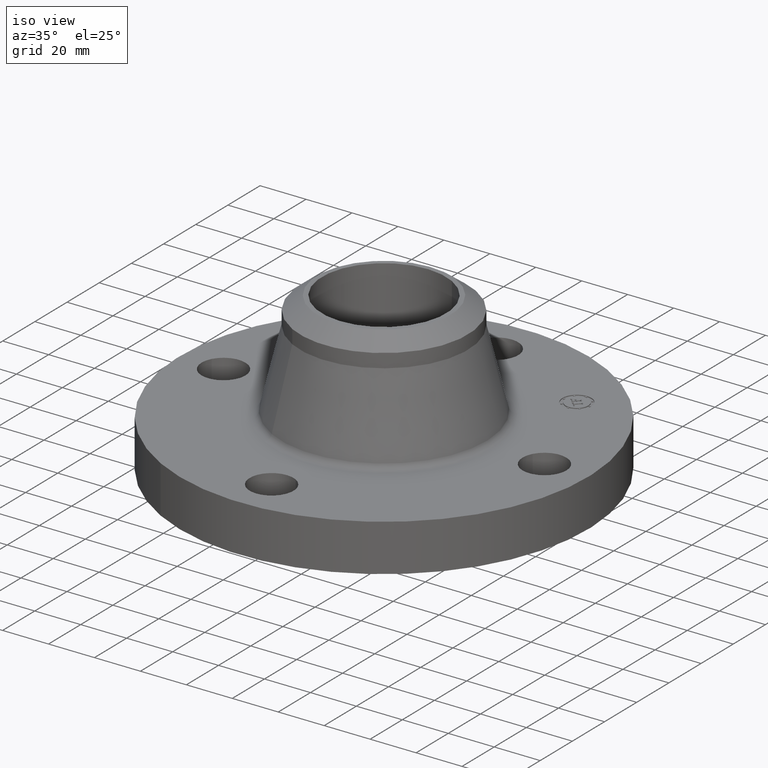
[diagram: clean part render]
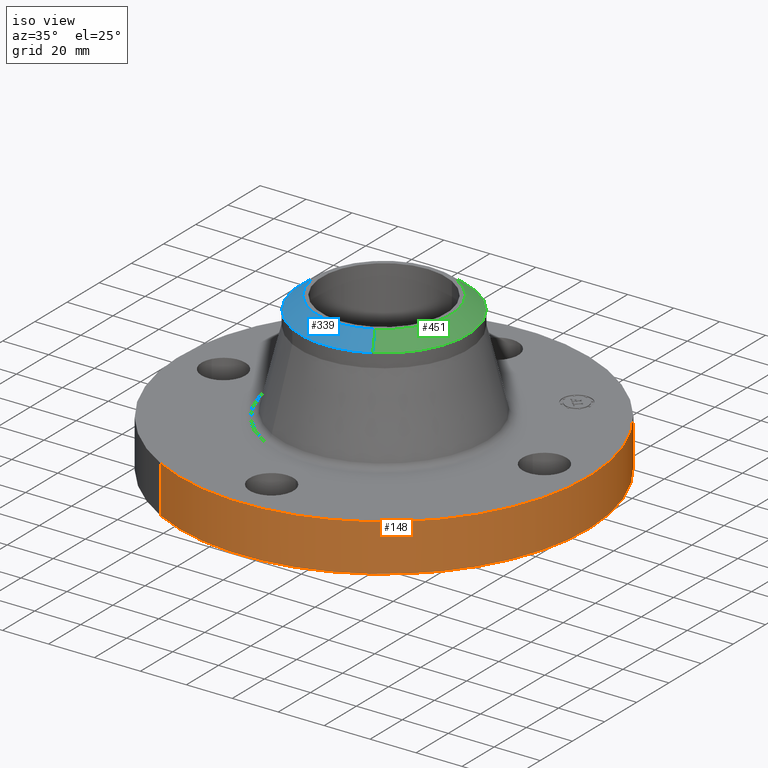
[diagram: same view with three faces highlighted in distinct colors, each labeled with its STEP entity id]
A machine part, iso view with three faces highlighted in distinct colors.
Their STEP definitions:

[orange] entity #148 — the highlighted cylindrical surface (partial cylindrical patch) has radius 88.9 mm, axis along (0, 0, -1).
#95=AXIS2_PLACEMENT_3D('Cylinder Axis2P3D',#92,#93,#94) ;
#134=AXIS2_PLACEMENT_3D('Circle Axis2P3D',#132,#133,$) ;
#139=AXIS2_PLACEMENT_3D('Circle Axis2P3D',#137,#138,$) ;
#92=CARTESIAN_POINT('Axis2P3D Location',(0.,0.,1.31375000001)) ;
#101=CARTESIAN_POINT('Vertex',(-1.67798938512,-3.07153896663,2.79741234551E-016)) ;
#103=CARTESIAN_POINT('Vertex',(1.67798938512,3.07153896663,2.79741234551E-016)) ;
#106=CARTESIAN_POINT('Line Origine',(-1.67798938512,-3.07153896663,0.405000000002)) ;
#110=CARTESIAN_POINT('Vertex',(-1.67798938512,-3.07153896663,0.810000000003)) ;
#117=CARTESIAN_POINT('Vertex',(1.67798938512,3.07153896663,0.810000000003)) ;
#120=CARTESIAN_POINT('Line Origine',(1.67798938512,3.07153896663,0.405000000002)) ;
#132=CARTESIAN_POINT('Axis2P3D Location',(0.,0.,2.79741234551E-016)) ;
#137=CARTESIAN_POINT('Axis2P3D Location',(0.,0.,0.810000000003)) ;
#93=DIRECTION('Axis2P3D Direction',(0.,0.,-0.0393700787402)) ;
#94=DIRECTION('Axis2P3D XDirection',(0.0188750212049,0.0345504945626,0.)) ;
#107=DIRECTION('Vector Direction',(0.,0.,-0.0393700787402)) ;
#121=DIRECTION('Vector Direction',(0.,0.,-0.0393700787402)) ;
#133=DIRECTION('Axis2P3D Direction',(0.,0.,-0.0393700787402)) ;
#138=DIRECTION('Axis2P3D Direction',(0.,0.,-0.0393700787402)) ;
#108=VECTOR('Line Direction',#107,0.0393700787402) ;
#122=VECTOR('Line Direction',#121,0.0393700787402) ;
#143=ORIENTED_EDGE('',*,*,#136,.F.) ;
#144=ORIENTED_EDGE('',*,*,#124,.T.) ;
#145=ORIENTED_EDGE('',*,*,#141,.T.) ;
#146=ORIENTED_EDGE('',*,*,#112,.F.) ;
#148=ADVANCED_FACE('PartBody',(#147),#96,.T.) ;
#135=CIRCLE('generated circle',#134,3.50000000001) ;
#140=CIRCLE('generated circle',#139,3.50000000001) ;
#96=CYLINDRICAL_SURFACE('generated cylinder',#95,3.50000000001) ;
#112=EDGE_CURVE('',#102,#111,#109,.F.) ;
#124=EDGE_CURVE('',#104,#118,#123,.F.) ;
#136=EDGE_CURVE('',#104,#102,#135,.T.) ;
#141=EDGE_CURVE('',#118,#111,#140,.T.) ;
#142=EDGE_LOOP('',(#143,#144,#145,#146)) ;
#147=FACE_OUTER_BOUND('',#142,.T.) ;
#109=LINE('Line',#106,#108) ;
#123=LINE('Line',#120,#122) ;
#102=VERTEX_POINT('',#101) ;
#104=VERTEX_POINT('',#103) ;
#111=VERTEX_POINT('',#110) ;
#118=VERTEX_POINT('',#117) ;

[blue] entity #339 — the highlighted conical surface has half-angle 52.5 deg.
#277=AXIS2_PLACEMENT_3D('Circle Axis2P3D',#275,#276,$) ;
#290=AXIS2_PLACEMENT_3D('Circle Axis2P3D',#288,#289,$) ;
#311=AXIS2_PLACEMENT_3D('Cone Axis2P3D',#308,#309,#310) ;
#322=AXIS2_PLACEMENT_3D('Circle Axis2P3D',#320,#321,$) ;
#258=CARTESIAN_POINT('Vertex',(-0.689174211746,-1.26152493272,2.46267182739)) ;
#272=CARTESIAN_POINT('Vertex',(0.689174211746,-1.26152493272,2.46267182739)) ;
#275=CARTESIAN_POINT('Axis2P3D Location',(0.,0.,2.46267182739)) ;
#288=CARTESIAN_POINT('Axis2P3D Location',(0.,0.,2.46267182739)) ;
#292=CARTESIAN_POINT('Vertex',(-0.689174211746,1.26152493272,2.46267182739)) ;
#308=CARTESIAN_POINT('Axis2P3D Location',(0.,0.,2.69000000001)) ;
#313=CARTESIAN_POINT('Line Origine',(0.618156944463,-1.13152869693,2.5763359137)) ;
#317=CARTESIAN_POINT('Vertex',(0.547139677179,-1.00153246114,2.69000000001)) ;
#320=CARTESIAN_POINT('Axis2P3D Location',(0.,0.,2.69000000001)) ;
#324=CARTESIAN_POINT('Vertex',(-0.547139677179,1.00153246114,2.69000000001)) ;
#327=CARTESIAN_POINT('Line Origine',(-0.618156944463,1.13152869693,2.5763359137)) ;
#276=DIRECTION('Axis2P3D Direction',(0.,0.,-0.0393700787402)) ;
#289=DIRECTION('Axis2P3D Direction',(0.,0.,-0.0393700787402)) ;
#309=DIRECTION('Axis2P3D Direction',(-0.,-0.,-0.0393700787402)) ;
#310=DIRECTION('Axis2P3D XDirection',(-0.0188750212049,0.0345504945626,0.)) ;
#314=DIRECTION('Vector Direction',(0.014974561121,-0.02741075027,-0.023966985394)) ;
#321=DIRECTION('Axis2P3D Direction',(0.,0.,-0.0393700787402)) ;
#328=DIRECTION('Vector Direction',(-0.014974561121,0.02741075027,-0.023966985394)) ;
#315=VECTOR('Line Direction',#314,0.0393700787402) ;
#329=VECTOR('Line Direction',#328,0.0393700787402) ;
#333=ORIENTED_EDGE('',*,*,#319,.F.) ;
#334=ORIENTED_EDGE('',*,*,#326,.F.) ;
#335=ORIENTED_EDGE('',*,*,#331,.T.) ;
#336=ORIENTED_EDGE('',*,*,#294,.T.) ;
#337=ORIENTED_EDGE('',*,*,#279,.F.) ;
#339=ADVANCED_FACE('PartBody',(#338),#312,.T.) ;
#278=CIRCLE('generated circle',#277,1.43750000001) ;
#291=CIRCLE('generated circle',#290,1.43750000001) ;
#323=CIRCLE('generated circle',#322,1.14124015748) ;
#312=CONICAL_SURFACE('Cone',#311,1.14124015748,0.916297857297) ;
#279=EDGE_CURVE('',#273,#259,#278,.T.) ;
#294=EDGE_CURVE('',#293,#259,#291,.F.) ;
#319=EDGE_CURVE('',#318,#273,#316,.T.) ;
#326=EDGE_CURVE('',#325,#318,#323,.F.) ;
#331=EDGE_CURVE('',#325,#293,#330,.T.) ;
#332=EDGE_LOOP('',(#333,#334,#335,#336,#337)) ;
#338=FACE_OUTER_BOUND('',#332,.T.) ;
#316=LINE('Line',#313,#315) ;
#330=LINE('Line',#327,#329) ;
#259=VERTEX_POINT('',#258) ;
#273=VERTEX_POINT('',#272) ;
#293=VERTEX_POINT('',#292) ;
#318=VERTEX_POINT('',#317) ;
#325=VERTEX_POINT('',#324) ;

[green] entity #451 — the highlighted conical surface has half-angle 52.5 deg.
#270=AXIS2_PLACEMENT_3D('Circle Axis2P3D',#268,#269,$) ;
#297=AXIS2_PLACEMENT_3D('Circle Axis2P3D',#295,#296,$) ;
#311=AXIS2_PLACEMENT_3D('Cone Axis2P3D',#308,#309,#310) ;
#432=AXIS2_PLACEMENT_3D('Circle Axis2P3D',#430,#431,$) ;
#265=CARTESIAN_POINT('Vertex',(0.689174211746,1.26152493272,2.46267182739)) ;
#268=CARTESIAN_POINT('Axis2P3D Location',(0.,0.,2.46267182739)) ;
#272=CARTESIAN_POINT('Vertex',(0.689174211746,-1.26152493272,2.46267182739)) ;
#292=CARTESIAN_POINT('Vertex',(-0.689174211746,1.26152493272,2.46267182739)) ;
#295=CARTESIAN_POINT('Axis2P3D Location',(0.,0.,2.46267182739)) ;
#308=CARTESIAN_POINT('Axis2P3D Location',(0.,0.,2.69000000001)) ;
#313=CARTESIAN_POINT('Line Origine',(0.618156944463,-1.13152869693,2.5763359137)) ;
#317=CARTESIAN_POINT('Vertex',(0.547139677179,-1.00153246114,2.69000000001)) ;
#324=CARTESIAN_POINT('Vertex',(-0.547139677179,1.00153246114,2.69000000001)) ;
#327=CARTESIAN_POINT('Line Origine',(-0.618156944463,1.13152869693,2.5763359137)) ;
#430=CARTESIAN_POINT('Axis2P3D Location',(0.,0.,2.69000000001)) ;
#269=DIRECTION('Axis2P3D Direction',(0.,0.,-0.0393700787402)) ;
#296=DIRECTION('Axis2P3D Direction',(0.,0.,-0.0393700787402)) ;
#309=DIRECTION('Axis2P3D Direction',(-0.,-0.,-0.0393700787402)) ;
#310=DIRECTION('Axis2P3D XDirection',(-0.0188750212049,0.0345504945626,0.)) ;
#314=DIRECTION('Vector Direction',(0.014974561121,-0.02741075027,-0.023966985394)) ;
#328=DIRECTION('Vector Direction',(-0.014974561121,0.02741075027,-0.023966985394)) ;
#431=DIRECTION('Axis2P3D Direction',(0.,0.,-0.0393700787402)) ;
#315=VECTOR('Line Direction',#314,0.0393700787402) ;
#329=VECTOR('Line Direction',#328,0.0393700787402) ;
#445=ORIENTED_EDGE('',*,*,#331,.F.) ;
#446=ORIENTED_EDGE('',*,*,#434,.F.) ;
#447=ORIENTED_EDGE('',*,*,#319,.T.) ;
#448=ORIENTED_EDGE('',*,*,#274,.T.) ;
#449=ORIENTED_EDGE('',*,*,#299,.F.) ;
#451=ADVANCED_FACE('PartBody',(#450),#312,.T.) ;
#271=CIRCLE('generated circle',#270,1.43750000001) ;
#298=CIRCLE('generated circle',#297,1.43750000001) ;
#433=CIRCLE('generated circle',#432,1.14124015748) ;
#312=CONICAL_SURFACE('Cone',#311,1.14124015748,0.916297857297) ;
#274=EDGE_CURVE('',#273,#266,#271,.F.) ;
#299=EDGE_CURVE('',#293,#266,#298,.T.) ;
#319=EDGE_CURVE('',#318,#273,#316,.T.) ;
#331=EDGE_CURVE('',#325,#293,#330,.T.) ;
#434=EDGE_CURVE('',#318,#325,#433,.F.) ;
#444=EDGE_LOOP('',(#445,#446,#447,#448,#449)) ;
#450=FACE_OUTER_BOUND('',#444,.T.) ;
#316=LINE('Line',#313,#315) ;
#330=LINE('Line',#327,#329) ;
#266=VERTEX_POINT('',#265) ;
#273=VERTEX_POINT('',#272) ;
#293=VERTEX_POINT('',#292) ;
#318=VERTEX_POINT('',#317) ;
#325=VERTEX_POINT('',#324) ;